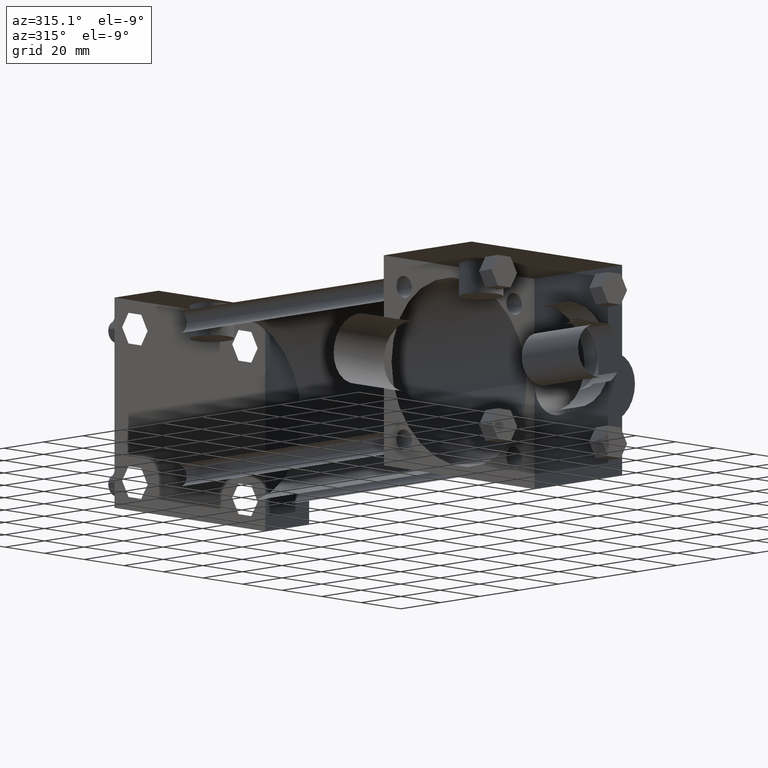
[diagram: clean part render]
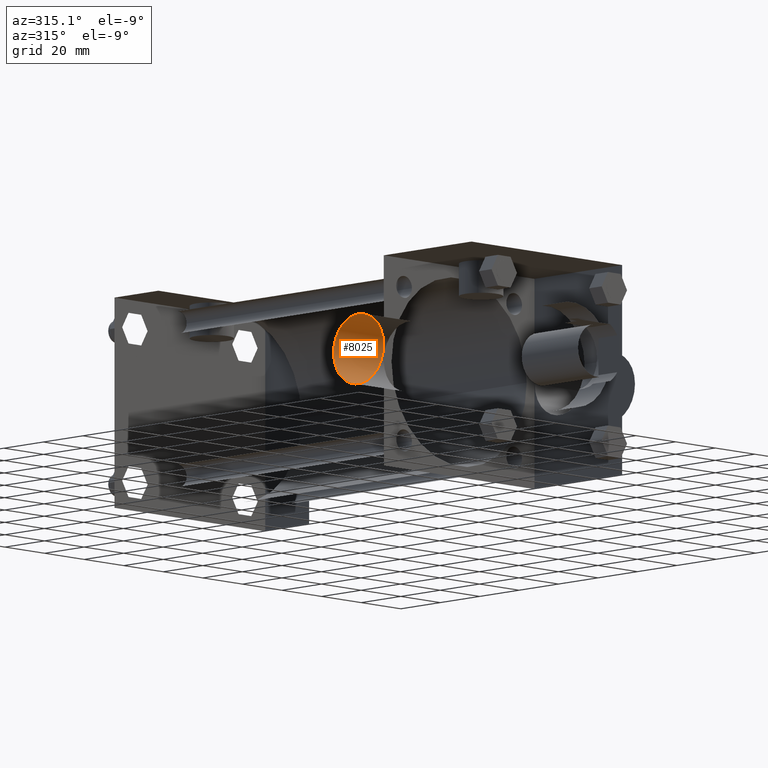
[diagram: same view with one face highlighted and labeled with its STEP entity id]
A machine part, auxiliary view. The second image highlights one B-rep face of the part: STEP entity #8025.
In plain terms, the highlighted planar face has unit normal (1, 0, 0).
Its self-contained STEP definition (entity closure, byte-faithful):
#717=EDGE_CURVE('',#723,#723,#718,.T.);
#718=CIRCLE('',#719,1.270000000E+001);
#719=AXIS2_PLACEMENT_3D('',#720,#721,#722);
#720=CARTESIAN_POINT('',(-6.350000000E+001,5.709920000E+001,0.000000000E+000));
#721=DIRECTION('',(1.0E+000,0.0E+000,0.0E+000));
#722=DIRECTION('',(0.0E+000,-1.0E+000,0.0E+000));
#723=VERTEX_POINT('',#724);
#724=CARTESIAN_POINT('',(-6.350000000E+001,4.439920000E+001,0.000000000E+000));
#731=FACE_OUTER_BOUND('',#732,.T.);
#732=EDGE_LOOP('',(#733));
#733=ORIENTED_EDGE('',*,*,#717,.F.);
#734=PLANE('',#735);
#735=AXIS2_PLACEMENT_3D('',#736,#737,#738);
#736=CARTESIAN_POINT('',(-6.350000000E+001,5.709920000E+001,0.000000000E+000));
#737=DIRECTION('',(1.0E+000,0.0E+000,0.0E+000));
#738=DIRECTION('',(0.0E+000,0.0E+000,-1.0E+000));
#8025=ADVANCED_FACE('',(#731),#734,.F.);